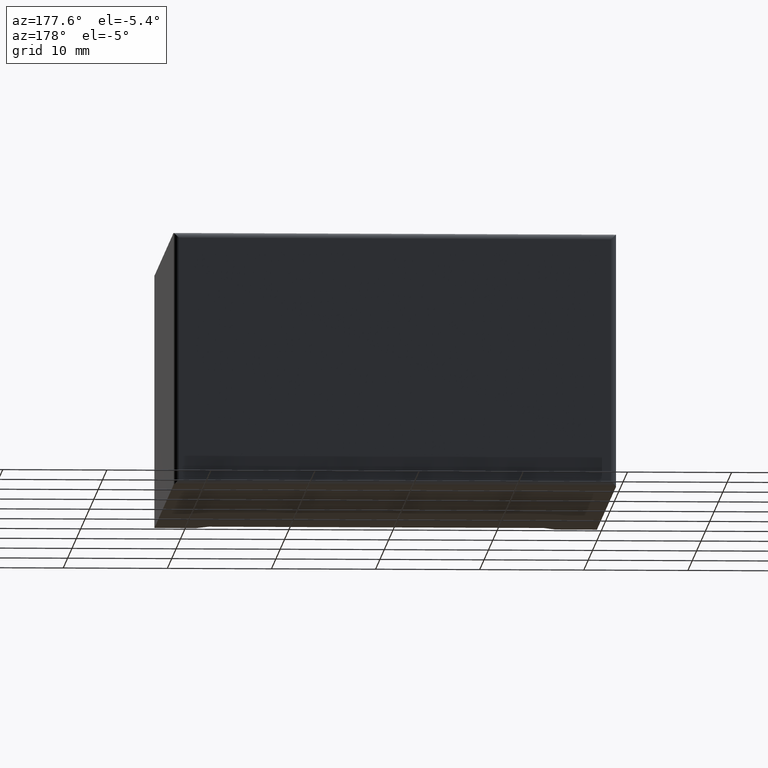
[diagram: clean part render]
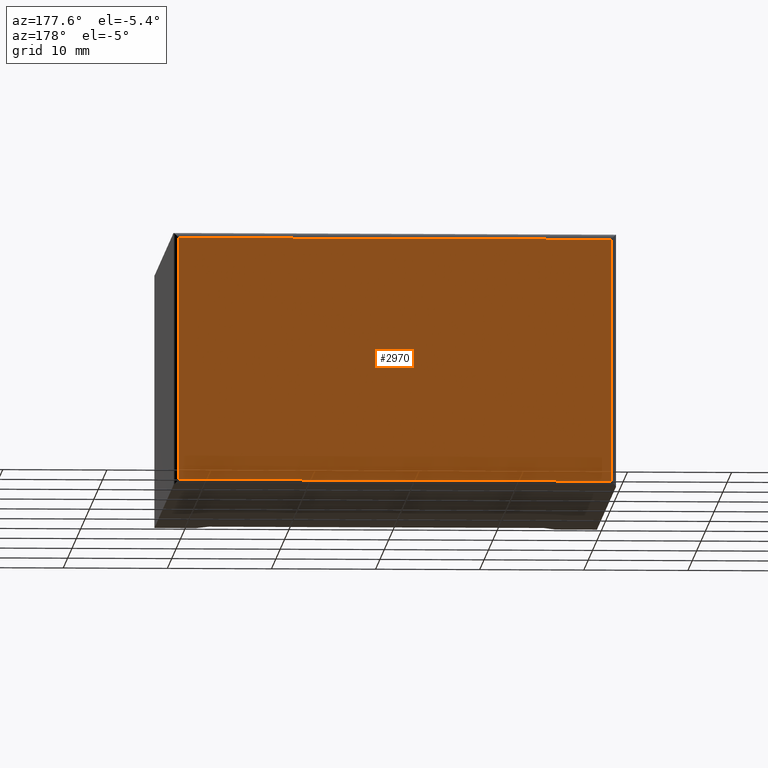
[diagram: same view with one face highlighted and labeled with its STEP entity id]
A machine part, auxiliary view. The second image highlights one B-rep face of the part: STEP entity #2970.
In plain terms, the highlighted planar face has unit normal (0, -1, 0).
Its self-contained STEP definition (entity closure, byte-faithful):
#215 = VECTOR ( 'NONE', #1635, 1000.000000000000000 ) ;
#290 = LINE ( 'NONE', #758, #2482 ) ;
#508 = CARTESIAN_POINT ( 'NONE',  ( 0.5000000000000000000, 44.29999999999999716, 0.5000000000000004441 ) ) ;
#628 = ORIENTED_EDGE ( 'NONE', *, *, #897, .T. ) ;
#635 = CARTESIAN_POINT ( 'NONE',  ( 0.5000000000000000000, 44.29999999999999716, 23.80000000000000071 ) ) ;
#652 = PLANE ( 'NONE',  #1945 ) ;
#662 = VERTEX_POINT ( 'NONE', #1820 ) ;
#758 = CARTESIAN_POINT ( 'NONE',  ( 42.00000000000000000, 44.29999999999999716, 24.30000000000000071 ) ) ;
#780 = DIRECTION ( 'NONE',  ( 1.000000000000000000, -0.000000000000000000, -0.000000000000000000 ) ) ;
#802 = EDGE_CURVE ( 'NONE', #997, #662, #2643, .T. ) ;
#895 = FACE_OUTER_BOUND ( 'NONE', #1887, .T. ) ;
#897 = EDGE_CURVE ( 'NONE', #1202, #2770, #2334, .T. ) ;
#930 = ORIENTED_EDGE ( 'NONE', *, *, #1242, .T. ) ;
#997 = VERTEX_POINT ( 'NONE', #635 ) ;
#1138 = CARTESIAN_POINT ( 'NONE',  ( 0.5000000000000000000, 44.29999999999999716, 24.30000000000000071 ) ) ;
#1160 = DIRECTION ( 'NONE',  ( 0.000000000000000000, -0.000000000000000000, -1.000000000000000000 ) ) ;
#1202 = VERTEX_POINT ( 'NONE', #1864 ) ;
#1242 = EDGE_CURVE ( 'NONE', #662, #1202, #290, .T. ) ;
#1427 = CARTESIAN_POINT ( 'NONE',  ( 0.000000000000000000, 44.29999999999999716, 0.5000000000000004441 ) ) ;
#1440 = LINE ( 'NONE', #1138, #1548 ) ;
#1480 = ORIENTED_EDGE ( 'NONE', *, *, #1694, .T. ) ;
#1548 = VECTOR ( 'NONE', #2063, 1000.000000000000000 ) ;
#1559 = ORIENTED_EDGE ( 'NONE', *, *, #802, .T. ) ;
#1635 = DIRECTION ( 'NONE',  ( -1.000000000000000000, 0.000000000000000000, 0.000000000000000000 ) ) ;
#1694 = EDGE_CURVE ( 'NONE', #2770, #997, #1440, .T. ) ;
#1724 = CARTESIAN_POINT ( 'NONE',  ( 0.000000000000000000, 44.29999999999999716, 23.80000000000000071 ) ) ;
#1820 = CARTESIAN_POINT ( 'NONE',  ( 42.00000000000000000, 44.29999999999999716, 23.80000000000000071 ) ) ;
#1825 = DIRECTION ( 'NONE',  ( 0.000000000000000000, 0.000000000000000000, -1.000000000000000000 ) ) ;
#1851 = DIRECTION ( 'NONE',  ( 0.000000000000000000, -1.000000000000000000, 0.000000000000000000 ) ) ;
#1864 = CARTESIAN_POINT ( 'NONE',  ( 42.00000000000000000, 44.29999999999999716, 0.5000000000000004441 ) ) ;
#1887 = EDGE_LOOP ( 'NONE', ( #628, #1480, #1559, #930 ) ) ;
#1945 = AXIS2_PLACEMENT_3D ( 'NONE', #3011, #1851, #1160 ) ;
#2063 = DIRECTION ( 'NONE',  ( -0.000000000000000000, -0.000000000000000000, 1.000000000000000000 ) ) ;
#2220 = VECTOR ( 'NONE', #780, 1000.000000000000000 ) ;
#2334 = LINE ( 'NONE', #1427, #215 ) ;
#2482 = VECTOR ( 'NONE', #1825, 1000.000000000000000 ) ;
#2643 = LINE ( 'NONE', #1724, #2220 ) ;
#2770 = VERTEX_POINT ( 'NONE', #508 ) ;
#2970 = ADVANCED_FACE ( 'NONE', ( #895 ), #652, .F. ) ;
#3011 = CARTESIAN_POINT ( 'NONE',  ( 0.000000000000000000, 44.29999999999999716, 24.30000000000000071 ) ) ;